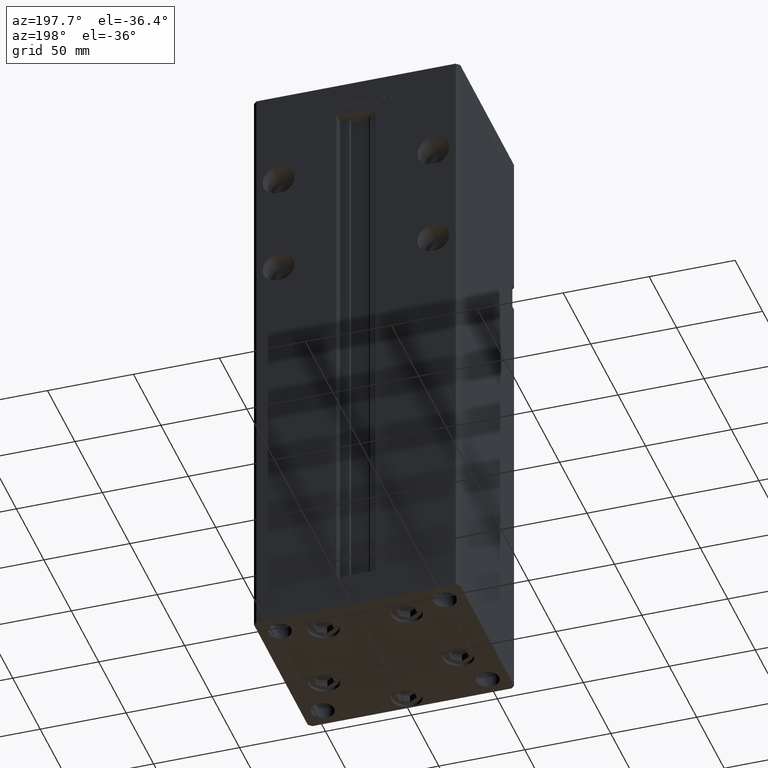
[diagram: clean part render]
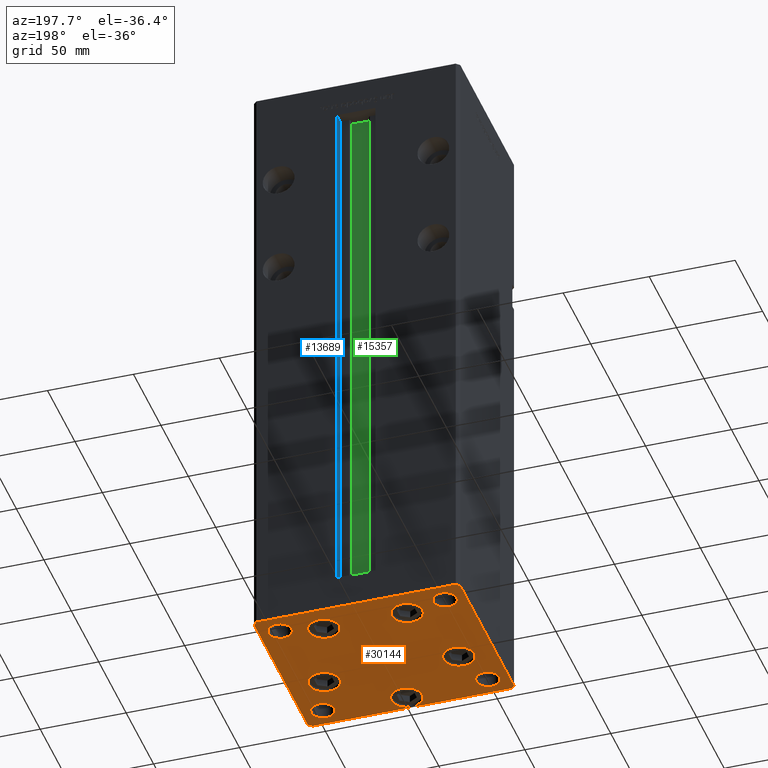
[diagram: same view with three faces highlighted in distinct colors, each labeled with its STEP entity id]
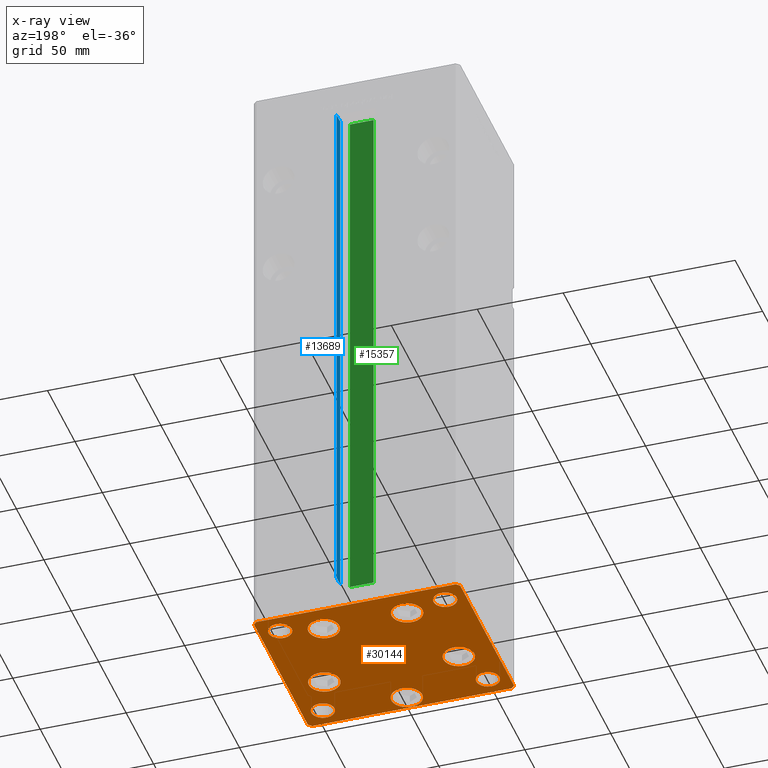
[diagram: x-ray of the same camera — body ghosted, the three highlighted faces saturated]
A machine part, auxiliary view with three faces highlighted in distinct colors.
The next image is the same camera in x-ray (body ghosted, the three faces saturated) — at least one of them is partly hidden behind the body in this view.
Their STEP definitions:

[orange] entity #30144 — the highlighted planar face has unit normal (0, 0, -1).
#337 = ORIENTED_EDGE ( 'NONE', *, *, #31702, .T. ) ;
#453 = VERTEX_POINT ( 'NONE', #34502 ) ;
#529 = ORIENTED_EDGE ( 'NONE', *, *, #13885, .T. ) ;
#1062 = EDGE_CURVE ( 'NONE', #43104, #453, #36925, .T. ) ;
#1269 = FACE_BOUND ( 'NONE', #6268, .T. ) ;
#1271 = CARTESIAN_POINT ( 'NONE',  ( 58.00000000000000000, -51.00000000000000711, 0.000000000000000000 ) ) ;
#1383 = DIRECTION ( 'NONE',  ( 1.000000000000000000, 0.000000000000000000, 0.000000000000000000 ) ) ;
#1575 = VERTEX_POINT ( 'NONE', #43292 ) ;
#1679 = EDGE_CURVE ( 'NONE', #32817, #21469, #30920, .T. ) ;
#1912 = CARTESIAN_POINT ( 'NONE',  ( 24.19288941894911460, 33.71875000000000711, 0.000000000000000000 ) ) ;
#2034 = ORIENTED_EDGE ( 'NONE', *, *, #16373, .T. ) ;
#2120 = ORIENTED_EDGE ( 'NONE', *, *, #49422, .T. ) ;
#2131 = DIRECTION ( 'NONE',  ( -0.7071067811865451302, -0.7071067811865500152, 0.000000000000000000 ) ) ;
#2506 = DIRECTION ( 'NONE',  ( 0.000000000000000000, -0.000000000000000000, -1.000000000000000000 ) ) ;
#2581 = EDGE_LOOP ( 'NONE', ( #6927, #27018 ) ) ;
#3144 = DIRECTION ( 'NONE',  ( 0.000000000000000000, -0.000000000000000000, -1.000000000000000000 ) ) ;
#3265 = ORIENTED_EDGE ( 'NONE', *, *, #47376, .T. ) ;
#3702 = VERTEX_POINT ( 'NONE', #27441 ) ;
#4051 = FACE_BOUND ( 'NONE', #52971, .T. ) ;
#4201 = CARTESIAN_POINT ( 'NONE',  ( 5.082284216461515748E-15, -41.50000000000000000, 0.000000000000000000 ) ) ;
#4362 = CARTESIAN_POINT ( 'NONE',  ( -24.19288941894912170, 33.71875000000000000, 0.000000000000000000 ) ) ;
#4605 = AXIS2_PLACEMENT_3D ( 'NONE', #4201, #25607, #13012 ) ;
#4824 = DIRECTION ( 'NONE',  ( 0.7071067811865474617, -0.7071067811865474617, 0.000000000000000000 ) ) ;
#4906 = VECTOR ( 'NONE', #46802, 1000.000000000000000 ) ;
#5025 = CARTESIAN_POINT ( 'NONE',  ( -48.00000000000000000, 39.00000000000000000, 0.000000000000000000 ) ) ;
#5053 = CARTESIAN_POINT ( 'NONE',  ( 48.12657522565562829, -13.83333333333332682, 0.000000000000000000 ) ) ;
#5184 = EDGE_CURVE ( 'NONE', #43194, #14771, #14993, .T. ) ;
#5302 = FACE_BOUND ( 'NONE', #49676, .T. ) ;
#5404 = VERTEX_POINT ( 'NONE', #46558 ) ;
#5670 = DIRECTION ( 'NONE',  ( 1.000000000000000000, 0.000000000000000000, 0.000000000000000000 ) ) ;
#5812 = CARTESIAN_POINT ( 'NONE',  ( -57.99999999999997868, -51.00000000000001421, 0.000000000000000000 ) ) ;
#5890 = AXIS2_PLACEMENT_3D ( 'NONE', #47769, #34904, #42680 ) ;
#5917 = EDGE_CURVE ( 'NONE', #39796, #12676, #46287, .T. ) ;
#6239 = CARTESIAN_POINT ( 'NONE',  ( 33.19288941894911460, 33.71875000000000711, 0.000000000000000000 ) ) ;
#6267 = CARTESIAN_POINT ( 'NONE',  ( 15.19288941894911105, 33.71875000000000711, 0.000000000000000000 ) ) ;
#6268 = EDGE_LOOP ( 'NONE', ( #34014, #2034 ) ) ;
#6563 = DIRECTION ( 'NONE',  ( 0.000000000000000000, -1.000000000000000000, 0.000000000000000000 ) ) ;
#6816 = CARTESIAN_POINT ( 'NONE',  ( 48.00000000000000000, 38.99999999999999289, 0.000000000000000000 ) ) ;
#6927 = ORIENTED_EDGE ( 'NONE', *, *, #18940, .T. ) ;
#7027 = DIRECTION ( 'NONE',  ( 0.000000000000000000, -0.000000000000000000, -1.000000000000000000 ) ) ;
#7059 = EDGE_LOOP ( 'NONE', ( #30525, #44622 ) ) ;
#7448 = AXIS2_PLACEMENT_3D ( 'NONE', #4362, #17206, #1383 ) ;
#7471 = DIRECTION ( 'NONE',  ( -0.7071067811865487940, 0.7071067811865463515, 0.000000000000000000 ) ) ;
#7508 = VERTEX_POINT ( 'NONE', #14351 ) ;
#7552 = ORIENTED_EDGE ( 'NONE', *, *, #13672, .T. ) ;
#7889 = EDGE_CURVE ( 'NONE', #34736, #13777, #17298, .T. ) ;
#8098 = VERTEX_POINT ( 'NONE', #39429 ) ;
#8156 = AXIS2_PLACEMENT_3D ( 'NONE', #52138, #11126, #47039 ) ;
#8668 = AXIS2_PLACEMENT_3D ( 'NONE', #19937, #28006, #44353 ) ;
#8711 = VERTEX_POINT ( 'NONE', #5053 ) ;
#9048 = CARTESIAN_POINT ( 'NONE',  ( 41.25000000000000000, -38.99999999999999289, 0.000000000000000000 ) ) ;
#9113 = AXIS2_PLACEMENT_3D ( 'NONE', #28344, #48974, #36648 ) ;
#9175 = ORIENTED_EDGE ( 'NONE', *, *, #24726, .T. ) ;
#9280 = CARTESIAN_POINT ( 'NONE',  ( 39.12657522565562829, -13.83333333333332860, 0.000000000000000000 ) ) ;
#9732 = EDGE_CURVE ( 'NONE', #8711, #8098, #26733, .T. ) ;
#9917 = CIRCLE ( 'NONE', #46707, 9.000000000000000000 ) ;
#9969 = ORIENTED_EDGE ( 'NONE', *, *, #19821, .T. ) ;
#10127 = CARTESIAN_POINT ( 'NONE',  ( 57.99999999999993605, 51.00000000000000711, 0.000000000000000000 ) ) ;
#10486 = CARTESIAN_POINT ( 'NONE',  ( -8.999999999999994671, -41.50000000000000000, 0.000000000000000000 ) ) ;
#10687 = EDGE_LOOP ( 'NONE', ( #14909, #12249, #31062, #19777, #50876, #9969, #15178, #529 ) ) ;
#10785 = CARTESIAN_POINT ( 'NONE',  ( 48.00000000000000000, -38.99999999999999289, 0.000000000000000000 ) ) ;
#11126 = DIRECTION ( 'NONE',  ( 0.000000000000000000, -0.000000000000000000, -1.000000000000000000 ) ) ;
#11298 = DIRECTION ( 'NONE',  ( 1.000000000000000000, 0.000000000000000000, 0.000000000000000000 ) ) ;
#11341 = VERTEX_POINT ( 'NONE', #48972 ) ;
#11780 = EDGE_LOOP ( 'NONE', ( #18340, #28657 ) ) ;
#11802 = VERTEX_POINT ( 'NONE', #35387 ) ;
#12249 = ORIENTED_EDGE ( 'NONE', *, *, #27373, .T. ) ;
#12676 = VERTEX_POINT ( 'NONE', #6267 ) ;
#12852 = DIRECTION ( 'NONE',  ( 0.000000000000000000, -0.000000000000000000, -1.000000000000000000 ) ) ;
#13012 = DIRECTION ( 'NONE',  ( 1.000000000000000000, 0.000000000000000000, 0.000000000000000000 ) ) ;
#13016 = DIRECTION ( 'NONE',  ( 0.000000000000000000, -0.000000000000000000, -1.000000000000000000 ) ) ;
#13070 = FACE_BOUND ( 'NONE', #2581, .T. ) ;
#13672 = EDGE_CURVE ( 'NONE', #25327, #1575, #27707, .T. ) ;
#13777 = VERTEX_POINT ( 'NONE', #44929 ) ;
#13842 = VERTEX_POINT ( 'NONE', #33127 ) ;
#13847 = AXIS2_PLACEMENT_3D ( 'NONE', #14167, #30515, #22452 ) ;
#13885 = EDGE_CURVE ( 'NONE', #14771, #3702, #22355, .T. ) ;
#14167 = CARTESIAN_POINT ( 'NONE',  ( 48.00000000000000000, 38.99999999999999289, 0.000000000000000000 ) ) ;
#14351 = CARTESIAN_POINT ( 'NONE',  ( 54.75000000000000000, -38.99999999999999289, 0.000000000000000000 ) ) ;
#14771 = VERTEX_POINT ( 'NONE', #32283 ) ;
#14909 = ORIENTED_EDGE ( 'NONE', *, *, #40945, .T. ) ;
#14993 = LINE ( 'NONE', #22486, #20606 ) ;
#15178 = ORIENTED_EDGE ( 'NONE', *, *, #5184, .T. ) ;
#16373 = EDGE_CURVE ( 'NONE', #20628, #52759, #46628, .T. ) ;
#16623 = EDGE_CURVE ( 'NONE', #8098, #8711, #30413, .T. ) ;
#17085 = LINE ( 'NONE', #5812, #4906 ) ;
#17206 = DIRECTION ( 'NONE',  ( 0.000000000000000000, -0.000000000000000000, -1.000000000000000000 ) ) ;
#17298 = CIRCLE ( 'NONE', #13847, 6.749999999999999112 ) ;
#17549 = DIRECTION ( 'NONE',  ( -1.000000000000000000, -2.392722035830079958E-16, 0.000000000000000000 ) ) ;
#17622 = PLANE ( 'NONE',  #18653 ) ;
#17708 = DIRECTION ( 'NONE',  ( 1.000000000000000000, 0.000000000000000000, 0.000000000000000000 ) ) ;
#18245 = DIRECTION ( 'NONE',  ( 0.000000000000000000, -0.000000000000000000, -1.000000000000000000 ) ) ;
#18340 = ORIENTED_EDGE ( 'NONE', *, *, #16623, .T. ) ;
#18515 = EDGE_CURVE ( 'NONE', #1575, #25327, #9917, .T. ) ;
#18653 = AXIS2_PLACEMENT_3D ( 'NONE', #50338, #26445, #19457 ) ;
#18940 = EDGE_CURVE ( 'NONE', #12676, #39796, #32179, .T. ) ;
#18946 = DIRECTION ( 'NONE',  ( 1.000000000000000000, 0.000000000000000000, 0.000000000000000000 ) ) ;
#19068 = CARTESIAN_POINT ( 'NONE',  ( 24.19288941894911460, 33.71875000000000711, 0.000000000000000000 ) ) ;
#19129 = DIRECTION ( 'NONE',  ( 1.000000000000000000, 0.000000000000000000, 0.000000000000000000 ) ) ;
#19357 = ORIENTED_EDGE ( 'NONE', *, *, #18515, .T. ) ;
#19457 = DIRECTION ( 'NONE',  ( 1.000000000000000000, 0.000000000000000000, 0.000000000000000000 ) ) ;
#19777 = ORIENTED_EDGE ( 'NONE', *, *, #30301, .T. ) ;
#19821 = EDGE_CURVE ( 'NONE', #38094, #43194, #29352, .T. ) ;
#19937 = CARTESIAN_POINT ( 'NONE',  ( -39.12657522565562829, -13.83333333333333925, 0.000000000000000000 ) ) ;
#20306 = CARTESIAN_POINT ( 'NONE',  ( 59.99999999999994316, 49.00000000000000000, 0.000000000000000000 ) ) ;
#20606 = VECTOR ( 'NONE', #2131, 1000.000000000000114 ) ;
#20628 = VERTEX_POINT ( 'NONE', #36612 ) ;
#21447 = EDGE_CURVE ( 'NONE', #453, #43104, #44073, .T. ) ;
#21469 = VERTEX_POINT ( 'NONE', #45230 ) ;
#21486 = CARTESIAN_POINT ( 'NONE',  ( 41.25000000000000000, 38.99999999999999289, 0.000000000000000000 ) ) ;
#21624 = FACE_BOUND ( 'NONE', #35657, .T. ) ;
#21928 = CIRCLE ( 'NONE', #27923, 6.749999999999999112 ) ;
#21937 = CIRCLE ( 'NONE', #9113, 9.000000000000001776 ) ;
#22355 = LINE ( 'NONE', #47026, #37985 ) ;
#22409 = CARTESIAN_POINT ( 'NONE',  ( -41.25000000000000000, -39.00000000000000000, 0.000000000000000000 ) ) ;
#22452 = DIRECTION ( 'NONE',  ( 1.000000000000000000, 0.000000000000000000, 0.000000000000000000 ) ) ;
#22486 = CARTESIAN_POINT ( 'NONE',  ( -57.99999999999999289, 50.99999999999997868, 0.000000000000000000 ) ) ;
#23282 = CARTESIAN_POINT ( 'NONE',  ( -57.99999999999999289, 50.99999999999997868, 0.000000000000000000 ) ) ;
#23508 = ORIENTED_EDGE ( 'NONE', *, *, #21447, .F. ) ;
#24384 = LINE ( 'NONE', #40724, #34559 ) ;
#24387 = DIRECTION ( 'NONE',  ( 1.000000000000000000, 0.000000000000000000, 0.000000000000000000 ) ) ;
#24726 = EDGE_CURVE ( 'NONE', #21469, #32817, #21937, .T. ) ;
#24824 = DIRECTION ( 'NONE',  ( 1.000000000000000000, 0.000000000000000000, 0.000000000000000000 ) ) ;
#24908 = AXIS2_PLACEMENT_3D ( 'NONE', #19068, #7027, #47230 ) ;
#25327 = VERTEX_POINT ( 'NONE', #10486 ) ;
#25501 = VECTOR ( 'NONE', #7471, 1000.000000000000000 ) ;
#25607 = DIRECTION ( 'NONE',  ( 0.000000000000000000, -0.000000000000000000, -1.000000000000000000 ) ) ;
#26445 = DIRECTION ( 'NONE',  ( -0.000000000000000000, 0.000000000000000000, 1.000000000000000000 ) ) ;
#26643 = CARTESIAN_POINT ( 'NONE',  ( -24.19288941894912170, 33.71875000000000000, 0.000000000000000000 ) ) ;
#26733 = CIRCLE ( 'NONE', #45567, 9.000000000000001776 ) ;
#27018 = ORIENTED_EDGE ( 'NONE', *, *, #5917, .T. ) ;
#27076 = EDGE_CURVE ( 'NONE', #52759, #20628, #39995, .T. ) ;
#27243 = CIRCLE ( 'NONE', #40924, 6.749999999999999112 ) ;
#27373 = EDGE_CURVE ( 'NONE', #13842, #5404, #17085, .T. ) ;
#27441 = CARTESIAN_POINT ( 'NONE',  ( -60.00000000000000000, -49.00000000000000000, 0.000000000000000000 ) ) ;
#27707 = CIRCLE ( 'NONE', #4605, 9.000000000000000000 ) ;
#27923 = AXIS2_PLACEMENT_3D ( 'NONE', #10785, #31927, #11298 ) ;
#28006 = DIRECTION ( 'NONE',  ( 0.000000000000000000, -0.000000000000000000, -1.000000000000000000 ) ) ;
#28309 = DIRECTION ( 'NONE',  ( -7.080503983578803823E-16, 1.000000000000000000, 0.000000000000000000 ) ) ;
#28344 = CARTESIAN_POINT ( 'NONE',  ( -39.12657522565562829, -13.83333333333333925, 0.000000000000000000 ) ) ;
#28629 = LINE ( 'NONE', #20306, #25501 ) ;
#28654 = VECTOR ( 'NONE', #17549, 1000.000000000000000 ) ;
#28657 = ORIENTED_EDGE ( 'NONE', *, *, #9732, .T. ) ;
#28696 = AXIS2_PLACEMENT_3D ( 'NONE', #5025, #41982, #50319 ) ;
#29352 = LINE ( 'NONE', #37906, #28654 ) ;
#29523 = EDGE_CURVE ( 'NONE', #13777, #34736, #27243, .T. ) ;
#30144 = ADVANCED_FACE ( 'NONE', ( #4051, #13070, #36735, #33702, #50070, #42000, #5302, #21624, #37981, #1269 ), #17622, .T. ) ;
#30301 = EDGE_CURVE ( 'NONE', #45942, #11802, #40351, .T. ) ;
#30413 = CIRCLE ( 'NONE', #8156, 9.000000000000001776 ) ;
#30515 = DIRECTION ( 'NONE',  ( -0.000000000000000000, 0.000000000000000000, 1.000000000000000000 ) ) ;
#30525 = ORIENTED_EDGE ( 'NONE', *, *, #29523, .F. ) ;
#30920 = CIRCLE ( 'NONE', #8668, 9.000000000000001776 ) ;
#31062 = ORIENTED_EDGE ( 'NONE', *, *, #47048, .T. ) ;
#31523 = VECTOR ( 'NONE', #28309, 1000.000000000000000 ) ;
#31702 = EDGE_CURVE ( 'NONE', #51863, #7508, #52960, .T. ) ;
#31927 = DIRECTION ( 'NONE',  ( 0.000000000000000000, -0.000000000000000000, -1.000000000000000000 ) ) ;
#31931 = CIRCLE ( 'NONE', #43910, 9.000000000000000000 ) ;
#32179 = CIRCLE ( 'NONE', #41460, 9.000000000000001776 ) ;
#32283 = CARTESIAN_POINT ( 'NONE',  ( -60.00000000000000000, 48.99999999999995737, 0.000000000000000000 ) ) ;
#32817 = VERTEX_POINT ( 'NONE', #45871 ) ;
#32958 = CARTESIAN_POINT ( 'NONE',  ( -48.00000000000000000, -39.00000000000000000, 0.000000000000000000 ) ) ;
#33127 = CARTESIAN_POINT ( 'NONE',  ( -57.99999999999997868, -51.00000000000001421, 0.000000000000000000 ) ) ;
#33564 = EDGE_LOOP ( 'NONE', ( #36533, #9175 ) ) ;
#33702 = FACE_BOUND ( 'NONE', #39120, .T. ) ;
#34014 = ORIENTED_EDGE ( 'NONE', *, *, #27076, .T. ) ;
#34411 = DIRECTION ( 'NONE',  ( -0.000000000000000000, 0.000000000000000000, 1.000000000000000000 ) ) ;
#34502 = CARTESIAN_POINT ( 'NONE',  ( -54.75000000000000000, 39.00000000000000000, 0.000000000000000000 ) ) ;
#34559 = VECTOR ( 'NONE', #4824, 1000.000000000000114 ) ;
#34736 = VERTEX_POINT ( 'NONE', #21486 ) ;
#34904 = DIRECTION ( 'NONE',  ( 0.000000000000000000, -0.000000000000000000, -1.000000000000000000 ) ) ;
#35387 = CARTESIAN_POINT ( 'NONE',  ( 59.99999999999994316, 49.00000000000000000, 0.000000000000000000 ) ) ;
#35657 = EDGE_LOOP ( 'NONE', ( #51950, #23508 ) ) ;
#36342 = CARTESIAN_POINT ( 'NONE',  ( 60.00000000000001421, -48.99999999999999289, 0.000000000000000000 ) ) ;
#36533 = ORIENTED_EDGE ( 'NONE', *, *, #1679, .T. ) ;
#36612 = CARTESIAN_POINT ( 'NONE',  ( -54.75000000000000000, -39.00000000000000000, 0.000000000000000000 ) ) ;
#36648 = DIRECTION ( 'NONE',  ( 1.000000000000000000, 0.000000000000000000, 0.000000000000000000 ) ) ;
#36735 = FACE_BOUND ( 'NONE', #11780, .T. ) ;
#36925 = CIRCLE ( 'NONE', #42044, 6.749999999999999112 ) ;
#37344 = VERTEX_POINT ( 'NONE', #42835 ) ;
#37406 = AXIS2_PLACEMENT_3D ( 'NONE', #32958, #12852, #24387 ) ;
#37906 = CARTESIAN_POINT ( 'NONE',  ( 57.99999999999993605, 51.00000000000000711, 0.000000000000000000 ) ) ;
#37981 = FACE_OUTER_BOUND ( 'NONE', #10687, .T. ) ;
#37985 = VECTOR ( 'NONE', #6563, 1000.000000000000000 ) ;
#38094 = VERTEX_POINT ( 'NONE', #10127 ) ;
#38243 = DIRECTION ( 'NONE',  ( 0.7071067811865474617, 0.7071067811865474617, 0.000000000000000000 ) ) ;
#38512 = EDGE_CURVE ( 'NONE', #37344, #11341, #31931, .T. ) ;
#39120 = EDGE_LOOP ( 'NONE', ( #7552, #19357 ) ) ;
#39429 = CARTESIAN_POINT ( 'NONE',  ( 30.12657522565562829, -13.83333333333332860, 0.000000000000000000 ) ) ;
#39559 = CARTESIAN_POINT ( 'NONE',  ( -41.25000000000000000, 39.00000000000000000, 0.000000000000000000 ) ) ;
#39796 = VERTEX_POINT ( 'NONE', #6239 ) ;
#39995 = CIRCLE ( 'NONE', #37406, 6.749999999999999112 ) ;
#40000 = CARTESIAN_POINT ( 'NONE',  ( 5.082284216461515748E-15, -41.50000000000000000, 0.000000000000000000 ) ) ;
#40351 = LINE ( 'NONE', #36342, #31523 ) ;
#40724 = CARTESIAN_POINT ( 'NONE',  ( -60.00000000000000000, -49.00000000000000000, 0.000000000000000000 ) ) ;
#40838 = CARTESIAN_POINT ( 'NONE',  ( 60.00000000000001421, -48.99999999999999289, 0.000000000000000000 ) ) ;
#40924 = AXIS2_PLACEMENT_3D ( 'NONE', #6816, #34411, #51317 ) ;
#40945 = EDGE_CURVE ( 'NONE', #3702, #13842, #24384, .T. ) ;
#41460 = AXIS2_PLACEMENT_3D ( 'NONE', #1912, #18245, #5670 ) ;
#41982 = DIRECTION ( 'NONE',  ( -0.000000000000000000, 0.000000000000000000, 1.000000000000000000 ) ) ;
#42000 = FACE_BOUND ( 'NONE', #7059, .T. ) ;
#42044 = AXIS2_PLACEMENT_3D ( 'NONE', #51215, #51476, #17708 ) ;
#42343 = AXIS2_PLACEMENT_3D ( 'NONE', #47371, #3144, #18946 ) ;
#42680 = DIRECTION ( 'NONE',  ( 1.000000000000000000, 0.000000000000000000, 0.000000000000000000 ) ) ;
#42835 = CARTESIAN_POINT ( 'NONE',  ( -33.19288941894912170, 33.71875000000000000, 0.000000000000000000 ) ) ;
#43104 = VERTEX_POINT ( 'NONE', #39559 ) ;
#43194 = VERTEX_POINT ( 'NONE', #23282 ) ;
#43292 = CARTESIAN_POINT ( 'NONE',  ( 9.000000000000005329, -41.50000000000000000, 0.000000000000000000 ) ) ;
#43910 = AXIS2_PLACEMENT_3D ( 'NONE', #26643, #51064, #19129 ) ;
#44073 = CIRCLE ( 'NONE', #28696, 6.749999999999999112 ) ;
#44254 = CIRCLE ( 'NONE', #7448, 9.000000000000000000 ) ;
#44353 = DIRECTION ( 'NONE',  ( 1.000000000000000000, 0.000000000000000000, 0.000000000000000000 ) ) ;
#44622 = ORIENTED_EDGE ( 'NONE', *, *, #7889, .F. ) ;
#44929 = CARTESIAN_POINT ( 'NONE',  ( 54.75000000000000000, 38.99999999999999289, 0.000000000000000000 ) ) ;
#45176 = ORIENTED_EDGE ( 'NONE', *, *, #38512, .T. ) ;
#45230 = CARTESIAN_POINT ( 'NONE',  ( -30.12657522565562829, -13.83333333333333748, 0.000000000000000000 ) ) ;
#45567 = AXIS2_PLACEMENT_3D ( 'NONE', #9280, #13016, #24824 ) ;
#45768 = LINE ( 'NONE', #1271, #51033 ) ;
#45871 = CARTESIAN_POINT ( 'NONE',  ( -48.12657522565562829, -13.83333333333333925, 0.000000000000000000 ) ) ;
#45942 = VERTEX_POINT ( 'NONE', #40838 ) ;
#46287 = CIRCLE ( 'NONE', #24908, 9.000000000000001776 ) ;
#46558 = CARTESIAN_POINT ( 'NONE',  ( 58.00000000000000000, -51.00000000000000711, 0.000000000000000000 ) ) ;
#46628 = CIRCLE ( 'NONE', #42343, 6.749999999999999112 ) ;
#46707 = AXIS2_PLACEMENT_3D ( 'NONE', #40000, #2506, #51559 ) ;
#46802 = DIRECTION ( 'NONE',  ( 1.000000000000000000, 1.196361017915039486E-16, 0.000000000000000000 ) ) ;
#47026 = CARTESIAN_POINT ( 'NONE',  ( -60.00000000000000000, 48.99999999999995737, 0.000000000000000000 ) ) ;
#47039 = DIRECTION ( 'NONE',  ( 1.000000000000000000, 0.000000000000000000, 0.000000000000000000 ) ) ;
#47048 = EDGE_CURVE ( 'NONE', #5404, #45942, #45768, .T. ) ;
#47230 = DIRECTION ( 'NONE',  ( 1.000000000000000000, 0.000000000000000000, 0.000000000000000000 ) ) ;
#47371 = CARTESIAN_POINT ( 'NONE',  ( -48.00000000000000000, -39.00000000000000000, 0.000000000000000000 ) ) ;
#47376 = EDGE_CURVE ( 'NONE', #7508, #51863, #21928, .T. ) ;
#47769 = CARTESIAN_POINT ( 'NONE',  ( 48.00000000000000000, -38.99999999999999289, 0.000000000000000000 ) ) ;
#48972 = CARTESIAN_POINT ( 'NONE',  ( -15.19288941894912170, 33.71875000000000000, 0.000000000000000000 ) ) ;
#48974 = DIRECTION ( 'NONE',  ( 0.000000000000000000, -0.000000000000000000, -1.000000000000000000 ) ) ;
#49422 = EDGE_CURVE ( 'NONE', #11341, #37344, #44254, .T. ) ;
#49676 = EDGE_LOOP ( 'NONE', ( #3265, #337 ) ) ;
#50070 = FACE_BOUND ( 'NONE', #33564, .T. ) ;
#50319 = DIRECTION ( 'NONE',  ( 1.000000000000000000, 0.000000000000000000, 0.000000000000000000 ) ) ;
#50338 = CARTESIAN_POINT ( 'NONE',  ( 0.000000000000000000, 0.000000000000000000, 0.000000000000000000 ) ) ;
#50876 = ORIENTED_EDGE ( 'NONE', *, *, #52510, .T. ) ;
#51033 = VECTOR ( 'NONE', #38243, 1000.000000000000114 ) ;
#51064 = DIRECTION ( 'NONE',  ( 0.000000000000000000, -0.000000000000000000, -1.000000000000000000 ) ) ;
#51215 = CARTESIAN_POINT ( 'NONE',  ( -48.00000000000000000, 39.00000000000000000, 0.000000000000000000 ) ) ;
#51317 = DIRECTION ( 'NONE',  ( 1.000000000000000000, 0.000000000000000000, 0.000000000000000000 ) ) ;
#51476 = DIRECTION ( 'NONE',  ( -0.000000000000000000, 0.000000000000000000, 1.000000000000000000 ) ) ;
#51559 = DIRECTION ( 'NONE',  ( 1.000000000000000000, 0.000000000000000000, 0.000000000000000000 ) ) ;
#51863 = VERTEX_POINT ( 'NONE', #9048 ) ;
#51950 = ORIENTED_EDGE ( 'NONE', *, *, #1062, .F. ) ;
#52138 = CARTESIAN_POINT ( 'NONE',  ( 39.12657522565562829, -13.83333333333332860, 0.000000000000000000 ) ) ;
#52510 = EDGE_CURVE ( 'NONE', #11802, #38094, #28629, .T. ) ;
#52759 = VERTEX_POINT ( 'NONE', #22409 ) ;
#52960 = CIRCLE ( 'NONE', #5890, 6.749999999999999112 ) ;
#52971 = EDGE_LOOP ( 'NONE', ( #45176, #2120 ) ) ;

[blue] entity #13689 — the highlighted planar face has unit normal (1, 0, 0).
#909 = EDGE_LOOP ( 'NONE', ( #30793, #39408, #24132, #47800 ) ) ;
#921 = VECTOR ( 'NONE', #47172, 1000.000000000000000 ) ;
#943 = EDGE_CURVE ( 'NONE', #37260, #21744, #26004, .T. ) ;
#6309 = AXIS2_PLACEMENT_3D ( 'NONE', #41945, #29366, #28848 ) ;
#6687 = VECTOR ( 'NONE', #42726, 1000.000000000000000 ) ;
#9420 = CARTESIAN_POINT ( 'NONE',  ( 11.24999999999999822, 0.000000000000000000, 318.5000000000000000 ) ) ;
#10044 = CARTESIAN_POINT ( 'NONE',  ( 11.24999999999999822, 51.00000000000000711, 0.000000000000000000 ) ) ;
#10310 = DIRECTION ( 'NONE',  ( 0.000000000000000000, 1.000000000000000000, 0.000000000000000000 ) ) ;
#10849 = CARTESIAN_POINT ( 'NONE',  ( 11.24999999999999822, 51.00000000000000711, 0.000000000000000000 ) ) ;
#13689 = ADVANCED_FACE ( 'NONE', ( #50010 ), #20515, .F. ) ;
#14407 = VECTOR ( 'NONE', #42855, 1000.000000000000000 ) ;
#20374 = VECTOR ( 'NONE', #10310, 1000.000000000000000 ) ;
#20515 = PLANE ( 'NONE',  #6309 ) ;
#21744 = VERTEX_POINT ( 'NONE', #30030 ) ;
#24132 = ORIENTED_EDGE ( 'NONE', *, *, #52396, .T. ) ;
#25956 = CARTESIAN_POINT ( 'NONE',  ( 11.24999999999999112, 51.00000000000000711, 318.5000000000000000 ) ) ;
#26004 = LINE ( 'NONE', #9420, #921 ) ;
#28848 = DIRECTION ( 'NONE',  ( 0.000000000000000000, 0.000000000000000000, -1.000000000000000000 ) ) ;
#29366 = DIRECTION ( 'NONE',  ( 1.000000000000000000, -0.000000000000000000, 0.000000000000000000 ) ) ;
#30030 = CARTESIAN_POINT ( 'NONE',  ( 11.24999999999999822, 44.50000000000000711, 318.5000000000000000 ) ) ;
#30136 = LINE ( 'NONE', #10044, #6687 ) ;
#30484 = EDGE_CURVE ( 'NONE', #39150, #38479, #51326, .T. ) ;
#30793 = ORIENTED_EDGE ( 'NONE', *, *, #52991, .F. ) ;
#35481 = CARTESIAN_POINT ( 'NONE',  ( 11.24999999999999822, 44.50000000000000711, 0.000000000000000000 ) ) ;
#37260 = VERTEX_POINT ( 'NONE', #25956 ) ;
#37732 = CARTESIAN_POINT ( 'NONE',  ( 11.24999999999999822, 44.50000000000000711, 0.000000000000000000 ) ) ;
#38479 = VERTEX_POINT ( 'NONE', #10849 ) ;
#39090 = LINE ( 'NONE', #42596, #14407 ) ;
#39150 = VERTEX_POINT ( 'NONE', #37732 ) ;
#39408 = ORIENTED_EDGE ( 'NONE', *, *, #30484, .F. ) ;
#41945 = CARTESIAN_POINT ( 'NONE',  ( 11.24999999999999822, 44.50000000000000711, 0.000000000000000000 ) ) ;
#42596 = CARTESIAN_POINT ( 'NONE',  ( 11.24999999999999822, 44.50000000000000711, 0.000000000000000000 ) ) ;
#42726 = DIRECTION ( 'NONE',  ( -0.000000000000000000, -0.000000000000000000, 1.000000000000000000 ) ) ;
#42855 = DIRECTION ( 'NONE',  ( -0.000000000000000000, -0.000000000000000000, 1.000000000000000000 ) ) ;
#47172 = DIRECTION ( 'NONE',  ( -0.000000000000000000, -1.000000000000000000, 0.000000000000000000 ) ) ;
#47800 = ORIENTED_EDGE ( 'NONE', *, *, #943, .F. ) ;
#50010 = FACE_OUTER_BOUND ( 'NONE', #909, .T. ) ;
#51326 = LINE ( 'NONE', #35481, #20374 ) ;
#52396 = EDGE_CURVE ( 'NONE', #39150, #21744, #39090, .T. ) ;
#52991 = EDGE_CURVE ( 'NONE', #38479, #37260, #30136, .T. ) ;

[green] entity #15357 — the highlighted planar face has unit normal (0, -1, 0).
#832 = LINE ( 'NONE', #52851, #21756 ) ;
#1764 = CARTESIAN_POINT ( 'NONE',  ( 0.000000000000000000, 40.49999999999987210, 318.5000000000000000 ) ) ;
#3218 = PLANE ( 'NONE',  #12398 ) ;
#4684 = VERTEX_POINT ( 'NONE', #16180 ) ;
#7234 = DIRECTION ( 'NONE',  ( 0.000000000000000000, 0.000000000000000000, -1.000000000000000000 ) ) ;
#8647 = ORIENTED_EDGE ( 'NONE', *, *, #51675, .T. ) ;
#8922 = EDGE_LOOP ( 'NONE', ( #41929, #34651, #8647, #49730 ) ) ;
#11472 = CARTESIAN_POINT ( 'NONE',  ( -6.876153656360465050, 40.49999999999987210, 0.000000000000000000 ) ) ;
#12398 = AXIS2_PLACEMENT_3D ( 'NONE', #31625, #23307, #7234 ) ;
#13307 = DIRECTION ( 'NONE',  ( -1.000000000000000000, 0.000000000000000000, 0.000000000000000000 ) ) ;
#13492 = VECTOR ( 'NONE', #27830, 1000.000000000000000 ) ;
#14322 = EDGE_CURVE ( 'NONE', #45733, #4684, #832, .T. ) ;
#15357 = ADVANCED_FACE ( 'NONE', ( #51479 ), #3218, .F. ) ;
#16130 = DIRECTION ( 'NONE',  ( -0.000000000000000000, -0.000000000000000000, 1.000000000000000000 ) ) ;
#16180 = CARTESIAN_POINT ( 'NONE',  ( 6.876153656360465050, 40.49999999999987210, 318.5000000000000000 ) ) ;
#21756 = VECTOR ( 'NONE', #16130, 1000.000000000000000 ) ;
#23307 = DIRECTION ( 'NONE',  ( 0.000000000000000000, -1.000000000000000000, -0.000000000000000000 ) ) ;
#24776 = EDGE_CURVE ( 'NONE', #4684, #43241, #30175, .T. ) ;
#26829 = CARTESIAN_POINT ( 'NONE',  ( 6.876153656360465050, 40.49999999999987210, 0.000000000000000000 ) ) ;
#27578 = CARTESIAN_POINT ( 'NONE',  ( -6.876153656360465050, 40.49999999999987210, 318.5000000000000000 ) ) ;
#27830 = DIRECTION ( 'NONE',  ( -0.000000000000000000, -0.000000000000000000, 1.000000000000000000 ) ) ;
#28812 = VECTOR ( 'NONE', #13307, 1000.000000000000000 ) ;
#30175 = LINE ( 'NONE', #1764, #28812 ) ;
#31625 = CARTESIAN_POINT ( 'NONE',  ( 6.876153656360465050, 40.49999999999987210, 0.000000000000000000 ) ) ;
#33872 = EDGE_CURVE ( 'NONE', #41409, #45733, #48264, .T. ) ;
#34651 = ORIENTED_EDGE ( 'NONE', *, *, #33872, .F. ) ;
#38447 = CARTESIAN_POINT ( 'NONE',  ( 6.876153656360465050, 40.49999999999987210, 0.000000000000000000 ) ) ;
#41409 = VERTEX_POINT ( 'NONE', #48858 ) ;
#41929 = ORIENTED_EDGE ( 'NONE', *, *, #14322, .F. ) ;
#43183 = DIRECTION ( 'NONE',  ( 1.000000000000000000, -0.000000000000000000, -0.000000000000000000 ) ) ;
#43241 = VERTEX_POINT ( 'NONE', #27578 ) ;
#45633 = VECTOR ( 'NONE', #43183, 1000.000000000000000 ) ;
#45733 = VERTEX_POINT ( 'NONE', #38447 ) ;
#48264 = LINE ( 'NONE', #26829, #45633 ) ;
#48858 = CARTESIAN_POINT ( 'NONE',  ( -6.876153656360465050, 40.49999999999987210, 0.000000000000000000 ) ) ;
#49730 = ORIENTED_EDGE ( 'NONE', *, *, #24776, .F. ) ;
#51479 = FACE_OUTER_BOUND ( 'NONE', #8922, .T. ) ;
#51675 = EDGE_CURVE ( 'NONE', #41409, #43241, #51966, .T. ) ;
#51966 = LINE ( 'NONE', #11472, #13492 ) ;
#52851 = CARTESIAN_POINT ( 'NONE',  ( 6.876153656360465050, 40.49999999999987210, 0.000000000000000000 ) ) ;